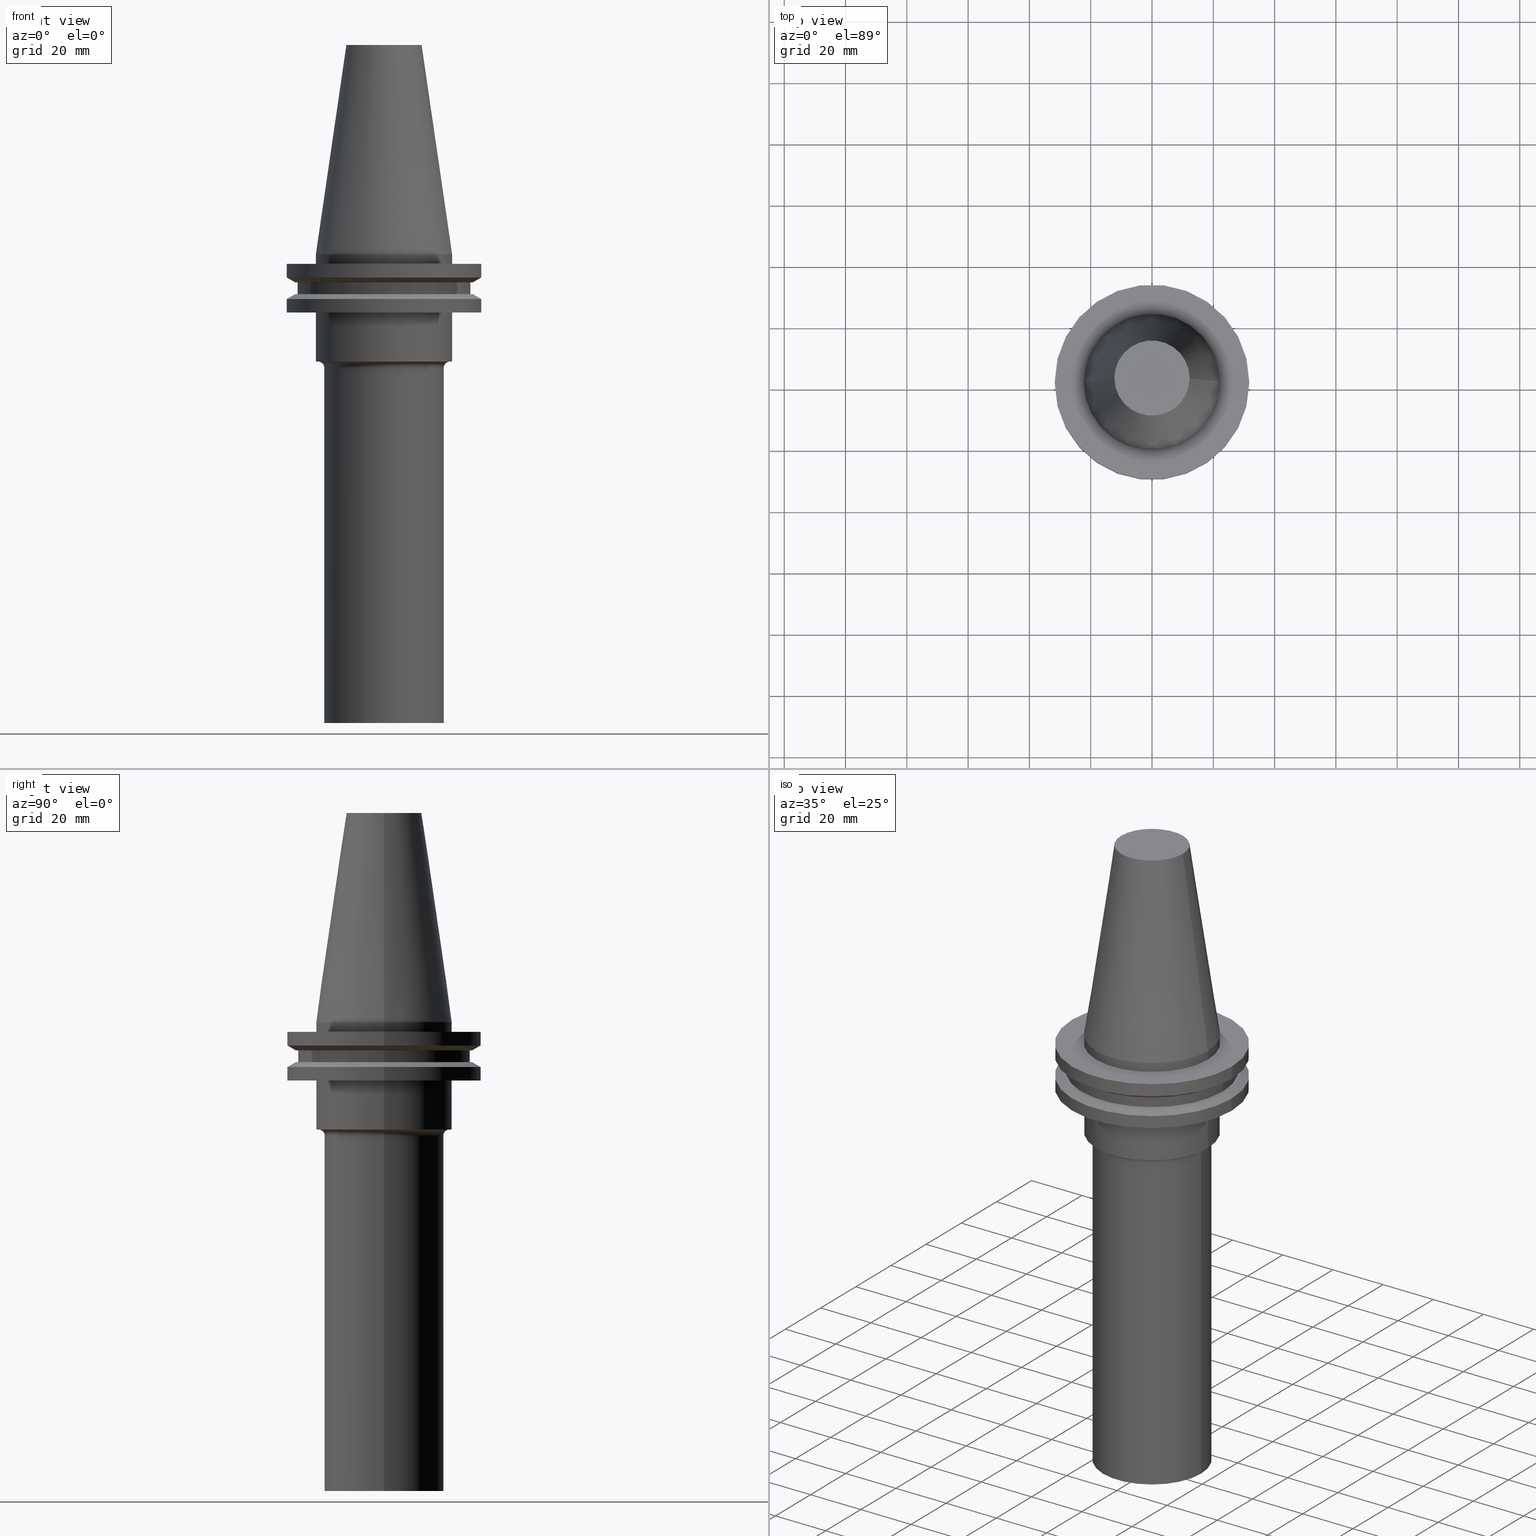
[diagram: canonical four-view strip — front | top / right | iso, engineering-drawing reading convention]
A machine part, canonical four-view strip (front | top / right | iso — engineering-drawing reading convention). The complete STEP part file that produces these views, byte-faithful:
ISO-10303-21;
HEADER;
FILE_DESCRIPTION (( 'STEP AP203' ),
    '1' );
FILE_NAME ('11_326_444.stp',
    '2022-03-07T22:04:25',
    ( '' ),
    ( '' ),
    'SwSTEP 2.0',
    'SolidWorks 2021',
    '' );
FILE_SCHEMA (( 'CONFIG_CONTROL_DESIGN' ));
ENDSEC;

DATA;
#1 = CARTESIAN_POINT ( 'NONE',  ( 0.000000000000000000, 0.000000000000000000, -9.204999999999991189 ) ) ;
#2 = AXIS2_PLACEMENT_3D ( 'NONE', #5, #486, #489 ) ;
#3 = VERTEX_POINT ( 'NONE', #62 ) ;
#4 = DIRECTION ( 'NONE',  ( -0.000000000000000000, -0.000000000000000000, 1.000000000000000000 ) ) ;
#5 = CARTESIAN_POINT ( 'NONE',  ( 0.000000000000000000, 0.000000000000000000, -9.205000000000005400 ) ) ;
#6 = DIRECTION ( 'NONE',  ( -0.000000000000000000, -0.000000000000000000, 1.000000000000000000 ) ) ;
#7 = AXIS2_PLACEMENT_3D ( 'NONE', #283, #220, #148 ) ;
#8 = PRODUCT_DEFINITION_FORMATION_WITH_SPECIFIED_SOURCE ( 'ANY', '', #328, .NOT_KNOWN. ) ;
#9 = DIRECTION ( 'NONE',  ( 0.000000000000000000, -0.000000000000000000, 1.000000000000000000 ) ) ;
#10 = DIRECTION ( 'NONE',  ( -0.000000000000000000, -0.000000000000000000, 1.000000000000000000 ) ) ;
#11 = ADVANCED_FACE ( 'NONE', ( #431 ), #749, .T. ) ;
#12 = CARTESIAN_POINT ( 'NONE',  ( 0.000000000000000000, 0.000000000000000000, -19.04999999999999716 ) ) ;
#13 = AXIS2_PLACEMENT_3D ( 'NONE', #179, #69, #134 ) ;
#14 = COORDINATED_UNIVERSAL_TIME_OFFSET ( 6, 0, .BEHIND. ) ;
#15 = CARTESIAN_POINT ( 'NONE',  ( 28.97919780457007732, 0.000000000000000000, -9.205000000000005400 ) ) ;
#16 = DIRECTION ( 'NONE',  ( -0.000000000000000000, -0.000000000000000000, 1.000000000000000000 ) ) ;
#17 = ORIENTED_EDGE ( 'NONE', *, *, #68, .T. ) ;
#18 = VERTEX_POINT ( 'NONE', #118 ) ;
#19 = LINE ( 'NONE', #609, #777 ) ;
#20 = ORIENTED_EDGE ( 'NONE', *, *, #393, .F. ) ;
#21 = ADVANCED_FACE ( 'NONE', ( #445 ), #665, .T. ) ;
#22 = APPLICATION_PROTOCOL_DEFINITION ( 'international standard', 'config_control_design', 1994, #559 ) ;
#23 = ORIENTED_EDGE ( 'NONE', *, *, #444, .F. ) ;
#24 = AXIS2_PLACEMENT_3D ( 'NONE', #737, #138, #605 ) ;
#25 = CARTESIAN_POINT ( 'NONE',  ( -31.75000000000000000, 3.888253587292846476E-15, -7.605276606597335842 ) ) ;
#26 = ORIENTED_EDGE ( 'NONE', *, *, #661, .F. ) ;
#27 = PERSON_AND_ORGANIZATION ( #374, #290 ) ;
#28 = ADVANCED_FACE ( 'NONE', ( #303, #548 ), #670, .F. ) ;
#29 = VECTOR ( 'NONE', #539, 1000.000000000000000 ) ;
#30 = EDGE_LOOP ( 'NONE', ( #658, #516, #562, #690 ) ) ;
#31 = LINE ( 'NONE', #334, #58 ) ;
#32 = CYLINDRICAL_SURFACE ( 'NONE', #666, 31.75000000000000000 ) ;
#33 = VERTEX_POINT ( 'NONE', #738 ) ;
#34 = DIRECTION ( 'NONE',  ( 1.000000000000000000, 0.000000000000000000, 0.000000000000000000 ) ) ;
#35 = ORIENTED_EDGE ( 'NONE', *, *, #308, .F. ) ;
#36 = CARTESIAN_POINT ( 'NONE',  ( 28.97919780457007732, 0.000000000000000000, -9.205000000000005400 ) ) ;
#37 = DIRECTION ( 'NONE',  ( 1.000000000000000000, 0.000000000000000000, 0.000000000000000000 ) ) ;
#38 = EDGE_LOOP ( 'NONE', ( #614, #628 ) ) ;
#39 = CARTESIAN_POINT ( 'NONE',  ( 0.000000000000000000, 0.000000000000000000, 0.000000000000000000 ) ) ;
#40 = CALENDAR_DATE ( 2022, 7, 3 ) ;
#41 = AXIS2_PLACEMENT_3D ( 'NONE', #154, #354, #47 ) ;
#42 = ORIENTED_EDGE ( 'NONE', *, *, #740, .T. ) ;
#43 = SECURITY_CLASSIFICATION ( '', '', #332 ) ;
#44 = CARTESIAN_POINT ( 'NONE',  ( 22.22500000000000142, 0.000000000000000000, -35.04999999999999716 ) ) ;
#45 = ORIENTED_EDGE ( 'NONE', *, *, #661, .T. ) ;
#46 = DIRECTION ( 'NONE',  ( 0.000000000000000000, -0.000000000000000000, 1.000000000000000000 ) ) ;
#47 = DIRECTION ( 'NONE',  ( -1.000000000000000000, 0.000000000000000000, 0.000000000000000000 ) ) ;
#48 = EDGE_LOOP ( 'NONE', ( #750, #103, #240, #532 ) ) ;
#49 = CARTESIAN_POINT ( 'NONE',  ( -28.97919780457008088, 0.000000000000000000, -13.05499999999999794 ) ) ;
#50 = EDGE_CURVE ( 'NONE', #144, #358, #612, .T. ) ;
#51 = CARTESIAN_POINT ( 'NONE',  ( 0.000000000000000000, 0.000000000000000000, 0.000000000000000000 ) ) ;
#52 = ORIENTED_EDGE ( 'NONE', *, *, #753, .F. ) ;
#53 = AXIS2_PLACEMENT_3D ( 'NONE', #680, #291, #129 ) ;
#54 = DIRECTION ( 'NONE',  ( 1.000000000000000000, 0.000000000000000000, 0.000000000000000000 ) ) ;
#55 = ORIENTED_EDGE ( 'NONE', *, *, #379, .F. ) ;
#56 = FACE_OUTER_BOUND ( 'NONE', #523, .T. ) ;
#57 = ADVANCED_FACE ( 'NONE', ( #248 ), #304, .F. ) ;
#58 = VECTOR ( 'NONE', #267, 1000.000000000000000 ) ;
#59 = EDGE_CURVE ( 'NONE', #576, #534, #530, .T. ) ;
#60 = AXIS2_PLACEMENT_3D ( 'NONE', #124, #370, #181 ) ;
#61 = DIRECTION ( 'NONE',  ( 1.000000000000000000, 0.000000000000000000, 0.000000000000000000 ) ) ;
#62 = CARTESIAN_POINT ( 'NONE',  ( -19.50000000000000000, 2.388061258337338939E-15, -153.0000000000000000 ) ) ;
#63 = CIRCLE ( 'NONE', #93, 22.22500000000000142 ) ;
#64 = EDGE_CURVE ( 'NONE', #89, #333, #604, .T. ) ;
#65 = DIRECTION ( 'NONE',  ( 1.000000000000000000, 0.000000000000000000, 0.000000000000000000 ) ) ;
#66 = DIRECTION ( 'NONE',  ( -0.000000000000000000, -0.000000000000000000, 1.000000000000000000 ) ) ;
#67 = CARTESIAN_POINT ( 'NONE',  ( 0.000000000000000000, 0.000000000000000000, -35.04999999999999716 ) ) ;
#68 = EDGE_CURVE ( 'NONE', #449, #144, #250, .T. ) ;
#69 = DIRECTION ( 'NONE',  ( -0.000000000000000000, -0.000000000000000000, 1.000000000000000000 ) ) ;
#70 = FACE_OUTER_BOUND ( 'NONE', #771, .T. ) ;
#71 = CIRCLE ( 'NONE', #433, 22.22500000000000142 ) ;
#72 = PERSON_AND_ORGANIZATION ( #374, #290 ) ;
#73 = EDGE_CURVE ( 'NONE', #764, #349, #736, .T. ) ;
#74 = DIRECTION ( 'NONE',  ( 1.000000000000000000, 0.000000000000000000, 0.000000000000000000 ) ) ;
#75 = PLANE ( 'NONE',  #687 ) ;
#76 = ADVANCED_FACE ( 'NONE', ( #126 ), #372, .T. ) ;
#77 = ORIENTED_EDGE ( 'NONE', *, *, #501, .F. ) ;
#78 = CARTESIAN_POINT ( 'NONE',  ( -22.22500000000000142, 2.721777511104992849E-15, -35.04999999999999716 ) ) ;
#79 = ADVANCED_FACE ( 'NONE', ( #376 ), #608, .T. ) ;
#80 = ORIENTED_EDGE ( 'NONE', *, *, #116, .T. ) ;
#81 = DIRECTION ( 'NONE',  ( 1.000000000000000000, 0.000000000000000000, 0.000000000000000000 ) ) ;
#82 = ORIENTED_EDGE ( 'NONE', *, *, #379, .T. ) ;
#83 = DIRECTION ( 'NONE',  ( 1.000000000000000000, 0.000000000000000000, 0.000000000000000000 ) ) ;
#84 = ORIENTED_EDGE ( 'NONE', *, *, #50, .T. ) ;
#85 =( GEOMETRIC_REPRESENTATION_CONTEXT ( 3 ) GLOBAL_UNCERTAINTY_ASSIGNED_CONTEXT ( ( #633 ) ) GLOBAL_UNIT_ASSIGNED_CONTEXT ( ( #632, #206, #756 ) ) REPRESENTATION_CONTEXT ( 'NONE', 'WORKASPACE' ) );
#86 = PERSON_AND_ORGANIZATION_ROLE ( 'design_supplier' ) ;
#87 = AXIS2_PLACEMENT_3D ( 'NONE', #217, #754, #464 ) ;
#88 = APPROVAL ( #448, 'UNSPECIFIED' ) ;
#89 = VERTEX_POINT ( 'NONE', #442 ) ;
#90 = CARTESIAN_POINT ( 'NONE',  ( 0.000000000000000000, 12.27178102086201150, 68.25000000000000000 ) ) ;
#91 = DIRECTION ( 'NONE',  ( -0.000000000000000000, -0.000000000000000000, 1.000000000000000000 ) ) ;
#92 = ORIENTED_EDGE ( 'NONE', *, *, #73, .F. ) ;
#93 = AXIS2_PLACEMENT_3D ( 'NONE', #113, #419, #230 ) ;
#94 = VERTEX_POINT ( 'NONE', #681 ) ;
#95 = DIRECTION ( 'NONE',  ( 1.000000000000000000, 0.000000000000000000, 0.000000000000000000 ) ) ;
#96 = CLOSED_SHELL ( 'NONE', ( #57, #601, #369, #509, #200, #483, #587, #76, #266, #467, #180, #150, #286, #497, #645, #481, #476, #324, #21, #652, #11, #232, #28, #79, #297, #718, #728 ) ) ;
#97 = CARTESIAN_POINT ( 'NONE',  ( 0.000000000000000000, 0.000000000000000000, -13.05499999999999794 ) ) ;
#98 = EDGE_LOOP ( 'NONE', ( #471, #701 ) ) ;
#99 = LINE ( 'NONE', #705, #535 ) ;
#100 = EDGE_LOOP ( 'NONE', ( #699, #278 ) ) ;
#101 = SHAPE_DEFINITION_REPRESENTATION ( #558, #696 ) ;
#102 = CIRCLE ( 'NONE', #132, 22.22500000000000142 ) ;
#103 = ORIENTED_EDGE ( 'NONE', *, *, #753, .T. ) ;
#104 = DIRECTION ( 'NONE',  ( 1.000000000000000000, 0.000000000000000000, 0.000000000000000000 ) ) ;
#105 = EDGE_LOOP ( 'NONE', ( #82, #141, #455, #712 ) ) ;
#106 = APPLICATION_CONTEXT ( 'configuration controlled 3d designs of mechanical parts and assemblies' ) ;
#107 = CARTESIAN_POINT ( 'NONE',  ( -22.22500000000000142, 0.000000000000000000, 0.000000000000000000 ) ) ;
#108 = ORIENTED_EDGE ( 'NONE', *, *, #170, .T. ) ;
#109 = AXIS2_PLACEMENT_3D ( 'NONE', #726, #434, #196 ) ;
#110 = EDGE_CURVE ( 'NONE', #510, #678, #31, .T. ) ;
#111 = CARTESIAN_POINT ( 'NONE',  ( -22.22500000000000142, 0.000000000000000000, 0.000000000000000000 ) ) ;
#112 = ORIENTED_EDGE ( 'NONE', *, *, #73, .T. ) ;
#113 = CARTESIAN_POINT ( 'NONE',  ( 0.000000000000000000, 0.000000000000000000, -35.04999999999999716 ) ) ;
#114 = EDGE_CURVE ( 'NONE', #394, #358, #264, .T. ) ;
#115 = CIRCLE ( 'NONE', #711, 21.50000000000000000 ) ;
#116 = EDGE_CURVE ( 'NONE', #519, #137, #205, .T. ) ;
#117 = CARTESIAN_POINT ( 'NONE',  ( 0.000000000000000000, 0.000000000000000000, -19.04999999999999716 ) ) ;
#118 = CARTESIAN_POINT ( 'NONE',  ( 21.50000000000000000, 0.000000000000000000, -35.04999999999999716 ) ) ;
#119 = EDGE_CURVE ( 'NONE', #461, #764, #775, .T. ) ;
#120 = DIRECTION ( 'NONE',  ( 1.000000000000000000, 0.000000000000000000, 0.000000000000000000 ) ) ;
#121 = DIRECTION ( 'NONE',  ( 0.8660254037844389297, 0.000000000000000000, 0.4999999999999995004 ) ) ;
#122 = DIRECTION ( 'NONE',  ( -0.000000000000000000, -0.000000000000000000, 1.000000000000000000 ) ) ;
#123 = AXIS2_PLACEMENT_3D ( 'NONE', #537, #356, #773 ) ;
#124 = CARTESIAN_POINT ( 'NONE',  ( 0.000000000000000000, 31.74999999999999289, -19.04999999999999716 ) ) ;
#125 = DIRECTION ( 'NONE',  ( 1.224646799147353207E-16, 1.000000000000000000, 0.000000000000000000 ) ) ;
#126 = FACE_OUTER_BOUND ( 'NONE', #513, .T. ) ;
#127 = CARTESIAN_POINT ( 'NONE',  ( -28.17999999999999972, 3.451054679997241634E-15, -13.05499999999999794 ) ) ;
#128 = EDGE_CURVE ( 'NONE', #171, #94, #540, .T. ) ;
#129 = DIRECTION ( 'NONE',  ( 1.000000000000000000, 0.000000000000000000, 0.000000000000000000 ) ) ;
#130 = ORIENTED_EDGE ( 'NONE', *, *, #331, .F. ) ;
#131 = FACE_BOUND ( 'NONE', #215, .T. ) ;
#132 = AXIS2_PLACEMENT_3D ( 'NONE', #488, #769, #301 ) ;
#133 = AXIS2_PLACEMENT_3D ( 'NONE', #688, #309, #373 ) ;
#134 = DIRECTION ( 'NONE',  ( 1.000000000000000000, 0.000000000000000000, 0.000000000000000000 ) ) ;
#135 = DIRECTION ( 'NONE',  ( 1.000000000000000000, 0.000000000000000000, 0.000000000000000000 ) ) ;
#136 = PERSON_AND_ORGANIZATION ( #374, #290 ) ;
#137 = VERTEX_POINT ( 'NONE', #341 ) ;
#138 = DIRECTION ( 'NONE',  ( -0.000000000000000000, -0.000000000000000000, 1.000000000000000000 ) ) ;
#139 = ORIENTED_EDGE ( 'NONE', *, *, #163, .F. ) ;
#140 = PERSON_AND_ORGANIZATION_ROLE ( 'creator' ) ;
#141 = ORIENTED_EDGE ( 'NONE', *, *, #536, .T. ) ;
#142 = CARTESIAN_POINT ( 'NONE',  ( 0.000000000000000000, 0.000000000000000000, -7.605276606597335842 ) ) ;
#143 = FACE_OUTER_BOUND ( 'NONE', #747, .T. ) ;
#144 = VERTEX_POINT ( 'NONE', #36 ) ;
#145 = DIRECTION ( 'NONE',  ( 1.000000000000000000, 0.000000000000000000, 0.000000000000000000 ) ) ;
#146 = ORIENTED_EDGE ( 'NONE', *, *, #423, .F. ) ;
#147 = DIRECTION ( 'NONE',  ( 1.000000000000000000, 0.000000000000000000, 0.000000000000000000 ) ) ;
#148 = DIRECTION ( 'NONE',  ( 1.000000000000000000, 0.000000000000000000, 0.000000000000000000 ) ) ;
#149 = VERTEX_POINT ( 'NONE', #635 ) ;
#150 = ADVANCED_FACE ( 'NONE', ( #626 ), #574, .F. ) ;
#151 = VECTOR ( 'NONE', #289, 1000.000000000000000 ) ;
#152 = ORIENTED_EDGE ( 'NONE', *, *, #359, .F. ) ;
#153 = CARTESIAN_POINT ( 'NONE',  ( 0.000000000000000000, 0.000000000000000000, 68.25000000000000000 ) ) ;
#154 = CARTESIAN_POINT ( 'NONE',  ( 0.000000000000000000, 0.000000000000000000, 0.000000000000000000 ) ) ;
#155 = EDGE_LOOP ( 'NONE', ( #625, #503, #528, #146 ) ) ;
#156 = DIRECTION ( 'NONE',  ( 1.000000000000000000, 0.000000000000000000, 0.000000000000000000 ) ) ;
#157 = EDGE_CURVE ( 'NONE', #3, #33, #463, .T. ) ;
#158 = ORIENTED_EDGE ( 'NONE', *, *, #385, .F. ) ;
#159 = CARTESIAN_POINT ( 'NONE',  ( 31.74999999999999289, 0.000000000000000000, -19.04999999999999716 ) ) ;
#160 = ORIENTED_EDGE ( 'NONE', *, *, #119, .T. ) ;
#161 = CARTESIAN_POINT ( 'NONE',  ( -19.50000000000000000, 2.388061258337338939E-15, 0.000000000000000000 ) ) ;
#162 = TOROIDAL_SURFACE ( 'NONE', #776, 21.50000000000000000, 2.000000000000003553 ) ;
#163 = EDGE_CURVE ( 'NONE', #418, #714, #472, .T. ) ;
#164 = CARTESIAN_POINT ( 'NONE',  ( 19.50000000000000000, 0.000000000000000000, -37.04999999999999716 ) ) ;
#165 = CIRCLE ( 'NONE', #568, 12.27178102086201150 ) ;
#166 = ORIENTED_EDGE ( 'NONE', *, *, #110, .F. ) ;
#167 = AXIS2_PLACEMENT_3D ( 'NONE', #682, #253, #313 ) ;
#168 = CONICAL_SURFACE ( 'NONE', #734, 28.97919780457007732, 1.047197551196598297 ) ;
#169 = CYLINDRICAL_SURFACE ( 'NONE', #381, 19.50000000000000000 ) ;
#170 = EDGE_CURVE ( 'NONE', #526, #519, #344, .T. ) ;
#171 = VERTEX_POINT ( 'NONE', #49 ) ;
#172 = CC_DESIGN_PERSON_AND_ORGANIZATION_ASSIGNMENT ( #395, #86, ( #8 ) ) ;
#173 = APPROVAL_ROLE ( '' ) ;
#174 = VECTOR ( 'NONE', #585, 1000.000000000000000 ) ;
#175 = AXIS2_PLACEMENT_3D ( 'NONE', #491, #9, #61 ) ;
#176 = CC_DESIGN_APPROVAL ( #88, ( #8 ) ) ;
#177 = DIRECTION ( 'NONE',  ( 1.000000000000000000, 0.000000000000000000, 0.000000000000000000 ) ) ;
#178 = CARTESIAN_POINT ( 'NONE',  ( -28.17999999999999972, 3.451054679997241634E-15, 68.25000000000000000 ) ) ;
#179 = CARTESIAN_POINT ( 'NONE',  ( 0.000000000000000000, 0.000000000000000000, -9.205000000000005400 ) ) ;
#180 = ADVANCED_FACE ( 'NONE', ( #56 ), #654, .T. ) ;
#181 = DIRECTION ( 'NONE',  ( 1.000000000000000000, 0.000000000000000000, 0.000000000000000000 ) ) ;
#182 = ORIENTED_EDGE ( 'NONE', *, *, #393, .T. ) ;
#183 = CARTESIAN_POINT ( 'NONE',  ( 0.000000000000000000, 0.000000000000000000, -19.04999999999999716 ) ) ;
#184 = AXIS2_PLACEMENT_3D ( 'NONE', #12, #392, #135 ) ;
#185 = AXIS2_PLACEMENT_3D ( 'NONE', #721, #236, #366 ) ;
#186 = DIRECTION ( 'NONE',  ( 1.000000000000000000, 0.000000000000000000, 0.000000000000000000 ) ) ;
#187 = CARTESIAN_POINT ( 'NONE',  ( 0.000000000000000000, 0.000000000000000000, -3.174999999999997158 ) ) ;
#188 = DIRECTION ( 'NONE',  ( 1.000000000000000000, 0.000000000000000000, 0.000000000000000000 ) ) ;
#189 = EDGE_CURVE ( 'NONE', #33, #577, #361, .T. ) ;
#190 = AXIS2_PLACEMENT_3D ( 'NONE', #39, #274, #525 ) ;
#191 = APPROVAL ( #209, 'UNSPECIFIED' ) ;
#192 = DIRECTION ( 'NONE',  ( 0.8660254037844387076, 1.060575238724906915E-16, -0.4999999999999998890 ) ) ;
#193 = DIRECTION ( 'NONE',  ( 1.000000000000000000, 0.000000000000000000, 0.000000000000000000 ) ) ;
#194 = DIRECTION ( 'NONE',  ( 0.000000000000000000, 0.000000000000000000, -1.000000000000000000 ) ) ;
#195 = APPROVAL_ROLE ( '' ) ;
#196 = DIRECTION ( 'NONE',  ( -1.000000000000000000, 0.000000000000000000, -0.000000000000000000 ) ) ;
#197 = CARTESIAN_POINT ( 'NONE',  ( 31.75000000000000000, 0.000000000000000000, -7.605276606597335842 ) ) ;
#198 = CIRCLE ( 'NONE', #347, 31.75000000000000000 ) ;
#199 = APPROVAL_ROLE ( '' ) ;
#200 = ADVANCED_FACE ( 'NONE', ( #768 ), #168, .T. ) ;
#201 = AXIS2_PLACEMENT_3D ( 'NONE', #473, #643, #691 ) ;
#202 = EDGE_LOOP ( 'NONE', ( #704, #212, #281, #166 ) ) ;
#203 = CARTESIAN_POINT ( 'NONE',  ( 22.22500000000000142, 2.721777511104992849E-15, 0.000000000000000000 ) ) ;
#204 = ORIENTED_EDGE ( 'NONE', *, *, #615, .F. ) ;
#205 = CIRCLE ( 'NONE', #371, 31.75000000000000000 ) ;
#206 =( NAMED_UNIT ( * ) PLANE_ANGLE_UNIT ( ) SI_UNIT ( $, .RADIAN. ) );
#207 = DIRECTION ( 'NONE',  ( 1.000000000000000000, 0.000000000000000000, 0.000000000000000000 ) ) ;
#208 = ORIENTED_EDGE ( 'NONE', *, *, #296, .F. ) ;
#209 = APPROVAL_STATUS ( 'not_yet_approved' ) ;
#210 = DIRECTION ( 'NONE',  ( -0.000000000000000000, -0.000000000000000000, 1.000000000000000000 ) ) ;
#211 = CARTESIAN_POINT ( 'NONE',  ( 0.000000000000000000, 0.000000000000000000, 68.25000000000000000 ) ) ;
#212 = ORIENTED_EDGE ( 'NONE', *, *, #163, .T. ) ;
#213 = CONICAL_SURFACE ( 'NONE', #87, 31.75000000000000000, 1.047197551196597853 ) ;
#214 = CALENDAR_DATE ( 2022, 7, 3 ) ;
#215 = EDGE_LOOP ( 'NONE', ( #389, #23 ) ) ;
#216 = CARTESIAN_POINT ( 'NONE',  ( 0.000000000000000000, 0.000000000000000000, -14.65472339340266572 ) ) ;
#217 = CARTESIAN_POINT ( 'NONE',  ( 0.000000000000000000, 0.000000000000000000, -14.65472339340266572 ) ) ;
#218 = ORIENTED_EDGE ( 'NONE', *, *, #59, .T. ) ;
#219 = ORIENTED_EDGE ( 'NONE', *, *, #224, .F. ) ;
#220 = DIRECTION ( 'NONE',  ( -0.000000000000000000, -0.000000000000000000, 1.000000000000000000 ) ) ;
#221 = ORIENTED_EDGE ( 'NONE', *, *, #595, .F. ) ;
#222 = CARTESIAN_POINT ( 'NONE',  ( -22.22500000000000142, 2.721777511104992849E-15, -3.174999999999997158 ) ) ;
#223 = ORIENTED_EDGE ( 'NONE', *, *, #114, .T. ) ;
#224 = EDGE_CURVE ( 'NONE', #418, #510, #63, .T. ) ;
#225 = AXIS2_PLACEMENT_3D ( 'NONE', #211, #415, #272 ) ;
#226 = LINE ( 'NONE', #111, #543 ) ;
#227 = ORIENTED_EDGE ( 'NONE', *, *, #170, .F. ) ;
#228 = CIRCLE ( 'NONE', #201, 28.17999999999999972 ) ;
#229 = AXIS2_PLACEMENT_3D ( 'NONE', #724, #686, #439 ) ;
#230 = DIRECTION ( 'NONE',  ( 1.000000000000000000, 0.000000000000000000, 0.000000000000000000 ) ) ;
#231 = CC_DESIGN_PERSON_AND_ORGANIZATION_ASSIGNMENT ( #265, #515, ( #43 ) ) ;
#232 = ADVANCED_FACE ( 'NONE', ( #295 ), #656, .T. ) ;
#233 = VECTOR ( 'NONE', #694, 1000.000000000000000 ) ;
#234 = AXIS2_PLACEMENT_3D ( 'NONE', #673, #46, #282 ) ;
#235 = CARTESIAN_POINT ( 'NONE',  ( -31.75000000000000000, 0.000000000000000000, -14.65472339340266572 ) ) ;
#236 = DIRECTION ( 'NONE',  ( -0.000000000000000000, -0.000000000000000000, 1.000000000000000000 ) ) ;
#237 = ORIENTED_EDGE ( 'NONE', *, *, #364, .T. ) ;
#238 = ORIENTED_EDGE ( 'NONE', *, *, #423, .T. ) ;
#239 = FACE_OUTER_BOUND ( 'NONE', #640, .T. ) ;
#240 = ORIENTED_EDGE ( 'NONE', *, *, #322, .T. ) ;
#241 = LINE ( 'NONE', #235, #551 ) ;
#242 = EDGE_CURVE ( 'NONE', #149, #33, #479, .T. ) ;
#243 = CARTESIAN_POINT ( 'NONE',  ( 0.000000000000000000, 0.000000000000000000, 68.25000000000000000 ) ) ;
#244 = LINE ( 'NONE', #744, #293 ) ;
#245 = CC_DESIGN_APPROVAL ( #387, ( #43 ) ) ;
#246 = DIRECTION ( 'NONE',  ( -0.000000000000000000, -0.000000000000000000, 1.000000000000000000 ) ) ;
#247 = DIRECTION ( 'NONE',  ( -1.000000000000000000, 1.224646799147355179E-16, 0.000000000000000000 ) ) ;
#248 = FACE_OUTER_BOUND ( 'NONE', #155, .T. ) ;
#249 = CARTESIAN_POINT ( 'NONE',  ( 0.000000000000000000, 0.000000000000000000, -19.04999999999999716 ) ) ;
#250 = CIRCLE ( 'NONE', #13, 28.97919780457007732 ) ;
#251 = DIRECTION ( 'NONE',  ( -0.000000000000000000, -0.000000000000000000, 1.000000000000000000 ) ) ;
#252 = DIRECTION ( 'NONE',  ( -0.000000000000000000, -0.000000000000000000, 1.000000000000000000 ) ) ;
#253 = DIRECTION ( 'NONE',  ( -0.000000000000000000, -0.000000000000000000, 1.000000000000000000 ) ) ;
#254 = DIRECTION ( 'NONE',  ( -0.000000000000000000, -0.000000000000000000, 1.000000000000000000 ) ) ;
#255 = EDGE_LOOP ( 'NONE', ( #621, #644 ) ) ;
#256 = DIRECTION ( 'NONE',  ( 0.000000000000000000, 0.000000000000000000, -1.000000000000000000 ) ) ;
#257 = ORIENTED_EDGE ( 'NONE', *, *, #64, .T. ) ;
#258 = AXIS2_PLACEMENT_3D ( 'NONE', #259, #555, #81 ) ;
#259 = CARTESIAN_POINT ( 'NONE',  ( 0.000000000000000000, 0.000000000000000000, -153.0000000000000000 ) ) ;
#260 = AXIS2_PLACEMENT_3D ( 'NONE', #620, #377, #733 ) ;
#261 = ORIENTED_EDGE ( 'NONE', *, *, #746, .T. ) ;
#262 = CARTESIAN_POINT ( 'NONE',  ( -31.74999999999999289, 3.888253587292845687E-15, -19.04999999999999716 ) ) ;
#263 = ORIENTED_EDGE ( 'NONE', *, *, #242, .F. ) ;
#264 = CIRCLE ( 'NONE', #302, 31.75000000000000000 ) ;
#265 = PERSON_AND_ORGANIZATION ( #374, #290 ) ;
#266 = ADVANCED_FACE ( 'NONE', ( #306 ), #664, .T. ) ;
#267 = DIRECTION ( 'NONE',  ( -0.000000000000000000, -0.000000000000000000, 1.000000000000000000 ) ) ;
#268 = FACE_OUTER_BOUND ( 'NONE', #421, .T. ) ;
#269 = ORIENTED_EDGE ( 'NONE', *, *, #271, .T. ) ;
#270 = DIRECTION ( 'NONE',  ( 1.000000000000000000, 0.000000000000000000, 0.000000000000000000 ) ) ;
#271 = EDGE_CURVE ( 'NONE', #577, #33, #772, .T. ) ;
#272 = DIRECTION ( 'NONE',  ( 1.000000000000000000, 0.000000000000000000, 0.000000000000000000 ) ) ;
#273 = ORIENTED_EDGE ( 'NONE', *, *, #363, .F. ) ;
#274 = DIRECTION ( 'NONE',  ( 0.000000000000000000, 0.000000000000000000, -1.000000000000000000 ) ) ;
#275 = AXIS2_PLACEMENT_3D ( 'NONE', #713, #375, #120 ) ;
#276 = DATE_AND_TIME ( #659, #314 ) ;
#277 = CC_DESIGN_APPROVAL ( #191, ( #676 ) ) ;
#278 = ORIENTED_EDGE ( 'NONE', *, *, #672, .T. ) ;
#279 = AXIS2_PLACEMENT_3D ( 'NONE', #671, #66, #446 ) ;
#280 = DIRECTION ( 'NONE',  ( -0.000000000000000000, -0.000000000000000000, 1.000000000000000000 ) ) ;
#281 = ORIENTED_EDGE ( 'NONE', *, *, #746, .F. ) ;
#282 = DIRECTION ( 'NONE',  ( 1.000000000000000000, 0.000000000000000000, 0.000000000000000000 ) ) ;
#283 = CARTESIAN_POINT ( 'NONE',  ( 0.000000000000000000, 0.000000000000000000, 68.25000000000000000 ) ) ;
#284 = EDGE_LOOP ( 'NONE', ( #273, #583 ) ) ;
#285 = DIRECTION ( 'NONE',  ( -0.000000000000000000, -0.000000000000000000, 1.000000000000000000 ) ) ;
#286 = ADVANCED_FACE ( 'NONE', ( #426, #596 ), #600, .F. ) ;
#287 = FACE_OUTER_BOUND ( 'NONE', #30, .T. ) ;
#288 = ORIENTED_EDGE ( 'NONE', *, *, #662, .T. ) ;
#289 = DIRECTION ( 'NONE',  ( -0.000000000000000000, -0.000000000000000000, 1.000000000000000000 ) ) ;
#290 = ORGANIZATION ( 'UNSPECIFIED', 'UNSPECIFIED', '' ) ;
#291 = DIRECTION ( 'NONE',  ( -0.000000000000000000, -0.000000000000000000, 1.000000000000000000 ) ) ;
#292 = ORIENTED_EDGE ( 'NONE', *, *, #595, .T. ) ;
#293 = VECTOR ( 'NONE', #122, 1000.000000000000000 ) ;
#294 = AXIS2_PLACEMENT_3D ( 'NONE', #243, #492, #386 ) ;
#295 = FACE_OUTER_BOUND ( 'NONE', #412, .T. ) ;
#296 = EDGE_CURVE ( 'NONE', #579, #638, #228, .T. ) ;
#297 = ADVANCED_FACE ( 'NONE', ( #505 ), #382, .F. ) ;
#298 = AXIS2_PLACEMENT_3D ( 'NONE', #117, #254, #145 ) ;
#299 = DIRECTION ( 'NONE',  ( 1.000000000000000000, 0.000000000000000000, 0.000000000000000000 ) ) ;
#300 = CIRCLE ( 'NONE', #581, 21.50000000000000000 ) ;
#301 = DIRECTION ( 'NONE',  ( 1.000000000000000000, 0.000000000000000000, 0.000000000000000000 ) ) ;
#302 = AXIS2_PLACEMENT_3D ( 'NONE', #142, #459, #517 ) ;
#303 = FACE_BOUND ( 'NONE', #284, .T. ) ;
#304 = TOROIDAL_SURFACE ( 'NONE', #428, 21.50000000000000000, 2.000000000000003553 ) ;
#305 = CARTESIAN_POINT ( 'NONE',  ( 31.75000000000000000, 3.888253587292846476E-15, -14.65472339340266572 ) ) ;
#306 = FACE_OUTER_BOUND ( 'NONE', #202, .T. ) ;
#307 = DIRECTION ( 'NONE',  ( 0.1443082272672999711, 1.767266086135276757E-17, -0.9895327864921755756 ) ) ;
#308 = EDGE_CURVE ( 'NONE', #576, #572, #435, .T. ) ;
#309 = DIRECTION ( 'NONE',  ( -0.000000000000000000, -0.000000000000000000, 1.000000000000000000 ) ) ;
#310 = CARTESIAN_POINT ( 'NONE',  ( -22.22500000000000142, 2.721777511104992849E-15, -19.04999999999999716 ) ) ;
#311 = CARTESIAN_POINT ( 'NONE',  ( 22.22500000000000142, 2.721777511104992849E-15, 0.000000000000000000 ) ) ;
#312 = AXIS2_PLACEMENT_3D ( 'NONE', #67, #4, #723 ) ;
#313 = DIRECTION ( 'NONE',  ( 1.000000000000000000, 0.000000000000000000, 0.000000000000000000 ) ) ;
#314 = LOCAL_TIME ( 16, 4, 25.00000000000000000, #592 ) ;
#315 = AXIS2_PLACEMENT_3D ( 'NONE', #249, #549, #493 ) ;
#316 = COORDINATED_UNIVERSAL_TIME_OFFSET ( 6, 0, .BEHIND. ) ;
#317 = DIRECTION ( 'NONE',  ( -0.000000000000000000, -0.000000000000000000, 1.000000000000000000 ) ) ;
#318 = CARTESIAN_POINT ( 'NONE',  ( -22.22500000000000142, 2.721777511104992849E-15, 68.25000000000000000 ) ) ;
#319 = MECHANICAL_CONTEXT ( 'NONE', #559, 'mechanical' ) ;
#320 = DIRECTION ( 'NONE',  ( 1.000000000000000000, 0.000000000000000000, 0.000000000000000000 ) ) ;
#321 = LINE ( 'NONE', #527, #174 ) ;
#322 = EDGE_CURVE ( 'NONE', #556, #577, #244, .T. ) ;
#323 = ORIENTED_EDGE ( 'NONE', *, *, #490, .T. ) ;
#324 = ADVANCED_FACE ( 'NONE', ( #131, #613 ), #75, .F. ) ;
#325 = PERSON_AND_ORGANIZATION ( #374, #290 ) ;
#326 = ORIENTED_EDGE ( 'NONE', *, *, #631, .T. ) ;
#327 = DIRECTION ( 'NONE',  ( -0.000000000000000000, -0.000000000000000000, 1.000000000000000000 ) ) ;
#328 = PRODUCT ( '11_326_444', '11_326_444', '', ( #319 ) ) ;
#329 = VERTEX_POINT ( 'NONE', #262 ) ;
#330 = CIRCLE ( 'NONE', #741, 31.75000000000000000 ) ;
#331 = EDGE_CURVE ( 'NONE', #94, #171, #743, .T. ) ;
#332 = SECURITY_CLASSIFICATION_LEVEL ( 'unclassified' ) ;
#333 = VERTEX_POINT ( 'NONE', #127 ) ;
#334 = CARTESIAN_POINT ( 'NONE',  ( 22.22500000000000142, 0.000000000000000000, 68.25000000000000000 ) ) ;
#335 = DIRECTION ( 'NONE',  ( -0.000000000000000000, -0.000000000000000000, 1.000000000000000000 ) ) ;
#336 = ORIENTED_EDGE ( 'NONE', *, *, #352, .F. ) ;
#337 = VECTOR ( 'NONE', #413, 1000.000000000000000 ) ;
#338 = EDGE_CURVE ( 'NONE', #556, #3, #404, .T. ) ;
#339 = DESIGN_CONTEXT ( 'detailed design', #106, 'design' ) ;
#340 = VERTEX_POINT ( 'NONE', #561 ) ;
#341 = CARTESIAN_POINT ( 'NONE',  ( -31.75000000000000000, 3.888253587292846476E-15, -14.65472339340266572 ) ) ;
#342 = DIRECTION ( 'NONE',  ( -0.000000000000000000, -0.000000000000000000, 1.000000000000000000 ) ) ;
#343 = ORIENTED_EDGE ( 'NONE', *, *, #536, .F. ) ;
#344 = LINE ( 'NONE', #716, #29 ) ;
#345 = DIRECTION ( 'NONE',  ( -0.8660254037844389297, 1.060575238724907285E-16, 0.4999999999999995004 ) ) ;
#346 = ORIENTED_EDGE ( 'NONE', *, *, #308, .T. ) ;
#347 = AXIS2_PLACEMENT_3D ( 'NONE', #441, #429, #485 ) ;
#348 = APPROVAL_PERSON_ORGANIZATION ( #27, #88, #195 ) ;
#349 = VERTEX_POINT ( 'NONE', #203 ) ;
#350 = CIRCLE ( 'NONE', #279, 31.75000000000000000 ) ;
#351 = LINE ( 'NONE', #470, #233 ) ;
#352 = EDGE_CURVE ( 'NONE', #89, #638, #19, .T. ) ;
#353 = ORIENTED_EDGE ( 'NONE', *, *, #501, .T. ) ;
#354 = DIRECTION ( 'NONE',  ( 0.000000000000000000, 0.000000000000000000, -1.000000000000000000 ) ) ;
#355 = ORIENTED_EDGE ( 'NONE', *, *, #702, .T. ) ;
#356 = DIRECTION ( 'NONE',  ( -0.000000000000000000, -0.000000000000000000, 1.000000000000000000 ) ) ;
#357 = DIRECTION ( 'NONE',  ( -0.1443082272672999711, 0.000000000000000000, -0.9895327864921755756 ) ) ;
#358 = VERTEX_POINT ( 'NONE', #197 ) ;
#359 = EDGE_CURVE ( 'NONE', #18, #149, #300, .T. ) ;
#360 = CIRCLE ( 'NONE', #590, 28.17999999999999972 ) ;
#361 = CIRCLE ( 'NONE', #594, 19.50000000000000000 ) ;
#362 = AXIS2_PLACEMENT_3D ( 'NONE', #368, #498, #74 ) ;
#363 = EDGE_CURVE ( 'NONE', #534, #576, #669, .T. ) ;
#364 = EDGE_CURVE ( 'NONE', #714, #678, #447, .T. ) ;
#365 = PLANE ( 'NONE',  #60 ) ;
#366 = DIRECTION ( 'NONE',  ( 1.000000000000000000, 0.000000000000000000, 0.000000000000000000 ) ) ;
#367 = CIRCLE ( 'NONE', #611, 31.75000000000000000 ) ;
#368 = CARTESIAN_POINT ( 'NONE',  ( 0.000000000000000000, 0.000000000000000000, 68.25000000000000000 ) ) ;
#369 = ADVANCED_FACE ( 'NONE', ( #70 ), #739, .T. ) ;
#370 = DIRECTION ( 'NONE',  ( 0.000000000000000000, -0.000000000000000000, 1.000000000000000000 ) ) ;
#371 = AXIS2_PLACEMENT_3D ( 'NONE', #216, #752, #95 ) ;
#372 = CYLINDRICAL_SURFACE ( 'NONE', #294, 31.75000000000000000 ) ;
#373 = DIRECTION ( 'NONE',  ( 1.000000000000000000, 0.000000000000000000, 0.000000000000000000 ) ) ;
#374 = PERSON ( 'UNSPECIFIED', 'UNSPECIFIED', 'UNSPECIFIED', ('UNSPECIFIED'), ('UNSPECIFIED'), ('UNSPECIFIED') ) ;
#375 = DIRECTION ( 'NONE',  ( -0.000000000000000000, -0.000000000000000000, 1.000000000000000000 ) ) ;
#376 = FACE_OUTER_BOUND ( 'NONE', #405, .T. ) ;
#377 = DIRECTION ( 'NONE',  ( 0.000000000000000000, -0.000000000000000000, 1.000000000000000000 ) ) ;
#378 = FACE_OUTER_BOUND ( 'NONE', #38, .T. ) ;
#379 = EDGE_CURVE ( 'NONE', #358, #394, #350, .T. ) ;
#380 = ORIENTED_EDGE ( 'NONE', *, *, #444, .T. ) ;
#381 = AXIS2_PLACEMENT_3D ( 'NONE', #550, #246, #774 ) ;
#382 = PLANE ( 'NONE',  #260 ) ;
#383 = CIRCLE ( 'NONE', #315, 31.74999999999999289 ) ;
#384 = LINE ( 'NONE', #508, #770 ) ;
#385 = EDGE_CURVE ( 'NONE', #526, #329, #649, .T. ) ;
#386 = DIRECTION ( 'NONE',  ( 1.000000000000000000, 0.000000000000000000, 0.000000000000000000 ) ) ;
#387 = APPROVAL ( #541, 'UNSPECIFIED' ) ;
#388 = CARTESIAN_POINT ( 'NONE',  ( 0.000000000000000000, 0.000000000000000000, -13.05499999999999794 ) ) ;
#389 = ORIENTED_EDGE ( 'NONE', *, *, #64, .F. ) ;
#390 = APPROVAL_DATE_TIME ( #569, #191 ) ;
#391 = ORIENTED_EDGE ( 'NONE', *, *, #401, .F. ) ;
#392 = DIRECTION ( 'NONE',  ( -0.000000000000000000, -0.000000000000000000, 1.000000000000000000 ) ) ;
#393 = EDGE_CURVE ( 'NONE', #329, #526, #383, .T. ) ;
#394 = VERTEX_POINT ( 'NONE', #25 ) ;
#395 = PERSON_AND_ORGANIZATION ( #374, #290 ) ;
#396 = EDGE_LOOP ( 'NONE', ( #261, #237 ) ) ;
#397 = DIRECTION ( 'NONE',  ( -0.000000000000000000, -0.000000000000000000, 1.000000000000000000 ) ) ;
#398 = DIRECTION ( 'NONE',  ( -0.000000000000000000, -0.000000000000000000, 1.000000000000000000 ) ) ;
#399 = CONICAL_SURFACE ( 'NONE', #41, 22.22500000000000142, 0.1448138465474119174 ) ;
#400 = EDGE_LOOP ( 'NONE', ( #589, #17, #84, #707 ) ) ;
#401 = EDGE_CURVE ( 'NONE', #764, #461, #165, .T. ) ;
#402 = LOCAL_TIME ( 16, 4, 25.00000000000000000, #14 ) ;
#403 = CARTESIAN_POINT ( 'NONE',  ( 12.27178102086201150, 2.112318622904291439E-15, 68.25000000000000000 ) ) ;
#404 = CIRCLE ( 'NONE', #133, 19.50000000000000000 ) ;
#405 = EDGE_LOOP ( 'NONE', ( #35, #218, #653, #544 ) ) ;
#406 = CARTESIAN_POINT ( 'NONE',  ( 0.000000000000000000, 0.000000000000000000, -13.05499999999999794 ) ) ;
#407 = CARTESIAN_POINT ( 'NONE',  ( 0.000000000000000000, 0.000000000000000000, 68.25000000000000000 ) ) ;
#408 = ORIENTED_EDGE ( 'NONE', *, *, #720, .F. ) ;
#409 = AXIS2_PLACEMENT_3D ( 'NONE', #440, #554, #194 ) ;
#410 = PERSON_AND_ORGANIZATION ( #374, #290 ) ;
#411 = FACE_OUTER_BOUND ( 'NONE', #105, .T. ) ;
#412 = EDGE_LOOP ( 'NONE', ( #343, #223, #546, #695 ) ) ;
#413 = DIRECTION ( 'NONE',  ( -0.000000000000000000, -0.000000000000000000, 1.000000000000000000 ) ) ;
#414 = EDGE_LOOP ( 'NONE', ( #160, #762 ) ) ;
#415 = DIRECTION ( 'NONE',  ( -0.000000000000000000, -0.000000000000000000, 1.000000000000000000 ) ) ;
#416 = ORIENTED_EDGE ( 'NONE', *, *, #615, .T. ) ;
#417 = CARTESIAN_POINT ( 'NONE',  ( 0.000000000000000000, 0.000000000000000000, -14.65472339340266572 ) ) ;
#418 = VERTEX_POINT ( 'NONE', #78 ) ;
#419 = DIRECTION ( 'NONE',  ( -0.000000000000000000, -0.000000000000000000, 1.000000000000000000 ) ) ;
#420 = FACE_OUTER_BOUND ( 'NONE', #506, .T. ) ;
#421 = EDGE_LOOP ( 'NONE', ( #257, #570, #204, #336 ) ) ;
#422 = APPROVAL_DATE_TIME ( #276, #387 ) ;
#423 = EDGE_CURVE ( 'NONE', #18, #577, #629, .T. ) ;
#424 = VECTOR ( 'NONE', #192, 1000.000000000000000 ) ;
#425 = CC_DESIGN_DATE_AND_TIME_ASSIGNMENT ( #462, #502, ( #676 ) ) ;
#426 = FACE_BOUND ( 'NONE', #98, .T. ) ;
#427 = PRODUCT_RELATED_PRODUCT_CATEGORY ( 'detail', '', ( #328 ) ) ;
#428 = AXIS2_PLACEMENT_3D ( 'NONE', #603, #317, #65 ) ;
#429 = DIRECTION ( 'NONE',  ( -0.000000000000000000, -0.000000000000000000, 1.000000000000000000 ) ) ;
#430 = EDGE_CURVE ( 'NONE', #534, #349, #321, .T. ) ;
#431 = FACE_OUTER_BOUND ( 'NONE', #400, .T. ) ;
#432 = PLANE ( 'NONE',  #175 ) ;
#433 = AXIS2_PLACEMENT_3D ( 'NONE', #51, #627, #748 ) ;
#434 = DIRECTION ( 'NONE',  ( 0.000000000000000000, 0.000000000000000000, -1.000000000000000000 ) ) ;
#435 = LINE ( 'NONE', #318, #507 ) ;
#436 = CC_DESIGN_PERSON_AND_ORGANIZATION_ASSIGNMENT ( #136, #457, ( #328 ) ) ;
#437 = DIRECTION ( 'NONE',  ( -0.000000000000000000, -0.000000000000000000, 1.000000000000000000 ) ) ;
#438 = AXIS2_PLACEMENT_3D ( 'NONE', #153, #210, #147 ) ;
#439 = DIRECTION ( 'NONE',  ( 1.000000000000000000, 0.000000000000000000, 0.000000000000000000 ) ) ;
#440 = CARTESIAN_POINT ( 'NONE',  ( 21.50000000000000000, 0.000000000000000000, -37.04999999999999716 ) ) ;
#441 = CARTESIAN_POINT ( 'NONE',  ( 0.000000000000000000, 0.000000000000000000, -3.174999999999997158 ) ) ;
#442 = CARTESIAN_POINT ( 'NONE',  ( 28.17999999999999972, 0.000000000000000000, -13.05499999999999794 ) ) ;
#443 = CARTESIAN_POINT ( 'NONE',  ( 0.000000000000000000, 0.000000000000000000, 68.25000000000000000 ) ) ;
#444 = EDGE_CURVE ( 'NONE', #333, #89, #360, .T. ) ;
#445 = FACE_OUTER_BOUND ( 'NONE', #767, .T. ) ;
#446 = DIRECTION ( 'NONE',  ( 1.000000000000000000, 0.000000000000000000, 0.000000000000000000 ) ) ;
#447 = CIRCLE ( 'NONE', #630, 22.22500000000000142 ) ;
#448 = APPROVAL_STATUS ( 'not_yet_approved' ) ;
#449 = VERTEX_POINT ( 'NONE', #651 ) ;
#450 = CARTESIAN_POINT ( 'NONE',  ( 0.000000000000000000, 0.000000000000000000, -35.04999999999999716 ) ) ;
#451 = ORIENTED_EDGE ( 'NONE', *, *, #338, .F. ) ;
#452 = CARTESIAN_POINT ( 'NONE',  ( 0.000000000000000000, 0.000000000000000000, 0.000000000000000000 ) ) ;
#453 = ORIENTED_EDGE ( 'NONE', *, *, #363, .T. ) ;
#454 = CARTESIAN_POINT ( 'NONE',  ( -28.17999999999999972, 3.451054679997241634E-15, -9.204999999999991189 ) ) ;
#455 = ORIENTED_EDGE ( 'NONE', *, *, #722, .F. ) ;
#456 = CC_DESIGN_PERSON_AND_ORGANIZATION_ASSIGNMENT ( #325, #140, ( #8 ) ) ;
#457 = PERSON_AND_ORGANIZATION_ROLE ( 'design_owner' ) ;
#458 = ORIENTED_EDGE ( 'NONE', *, *, #224, .T. ) ;
#459 = DIRECTION ( 'NONE',  ( -0.000000000000000000, -0.000000000000000000, 1.000000000000000000 ) ) ;
#460 = DIRECTION ( 'NONE',  ( 0.000000000000000000, 0.000000000000000000, -1.000000000000000000 ) ) ;
#461 = VERTEX_POINT ( 'NONE', #575 ) ;
#462 = DATE_AND_TIME ( #214, #730 ) ;
#463 = LINE ( 'NONE', #161, #151 ) ;
#464 = DIRECTION ( 'NONE',  ( -1.000000000000000000, 0.000000000000000000, 0.000000000000000000 ) ) ;
#465 = ORIENTED_EDGE ( 'NONE', *, *, #662, .F. ) ;
#466 = CARTESIAN_POINT ( 'NONE',  ( 0.000000000000000000, 0.000000000000000000, -37.04999999999999716 ) ) ;
#467 = ADVANCED_FACE ( 'NONE', ( #578 ), #399, .T. ) ;
#468 = VECTOR ( 'NONE', #121, 1000.000000000000000 ) ;
#469 = ORIENTED_EDGE ( 'NONE', *, *, #542, .T. ) ;
#470 = CARTESIAN_POINT ( 'NONE',  ( -31.75000000000000000, 3.888253587292846476E-15, 68.25000000000000000 ) ) ;
#471 = ORIENTED_EDGE ( 'NONE', *, *, #359, .T. ) ;
#472 = LINE ( 'NONE', #584, #337 ) ;
#473 = CARTESIAN_POINT ( 'NONE',  ( 0.000000000000000000, 0.000000000000000000, -9.204999999999991189 ) ) ;
#474 = CARTESIAN_POINT ( 'NONE',  ( 0.000000000000000000, 0.000000000000000000, 68.25000000000000000 ) ) ;
#475 = ORIENTED_EDGE ( 'NONE', *, *, #352, .T. ) ;
#476 = ADVANCED_FACE ( 'NONE', ( #143 ), #565, .T. ) ;
#477 = DIRECTION ( 'NONE',  ( -0.8660254037844387076, 0.000000000000000000, -0.4999999999999998890 ) ) ;
#478 = ORIENTED_EDGE ( 'NONE', *, *, #110, .T. ) ;
#479 = CIRCLE ( 'NONE', #636, 2.000000000000001776 ) ;
#480 = DATE_TIME_ROLE ( 'classification_date' ) ;
#481 = ADVANCED_FACE ( 'NONE', ( #531 ), #32, .T. ) ;
#482 = MANIFOLD_SOLID_BREP ( 'CKB', #96 ) ;
#483 = ADVANCED_FACE ( 'NONE', ( #268 ), #637, .T. ) ;
#484 = VECTOR ( 'NONE', #342, 1000.000000000000000 ) ;
#485 = DIRECTION ( 'NONE',  ( 1.000000000000000000, 0.000000000000000000, 0.000000000000000000 ) ) ;
#486 = DIRECTION ( 'NONE',  ( -0.000000000000000000, -0.000000000000000000, 1.000000000000000000 ) ) ;
#487 = ORIENTED_EDGE ( 'NONE', *, *, #385, .T. ) ;
#488 = CARTESIAN_POINT ( 'NONE',  ( 0.000000000000000000, 0.000000000000000000, 0.000000000000000000 ) ) ;
#489 = DIRECTION ( 'NONE',  ( 1.000000000000000000, 0.000000000000000000, 0.000000000000000000 ) ) ;
#490 = EDGE_CURVE ( 'NONE', #349, #572, #71, .T. ) ;
#491 = CARTESIAN_POINT ( 'NONE',  ( 0.000000000000000000, 28.97919780457007732, -9.204999999999996518 ) ) ;
#492 = DIRECTION ( 'NONE',  ( -0.000000000000000000, -0.000000000000000000, 1.000000000000000000 ) ) ;
#493 = DIRECTION ( 'NONE',  ( 1.000000000000000000, 0.000000000000000000, 0.000000000000000000 ) ) ;
#494 = LINE ( 'NONE', #305, #424 ) ;
#495 = AXIS2_PLACEMENT_3D ( 'NONE', #90, #521, #759 ) ;
#496 = DIRECTION ( 'NONE',  ( -0.000000000000000000, -0.000000000000000000, 1.000000000000000000 ) ) ;
#497 = ADVANCED_FACE ( 'NONE', ( #763 ), #700, .T. ) ;
#498 = DIRECTION ( 'NONE',  ( -0.000000000000000000, -0.000000000000000000, 1.000000000000000000 ) ) ;
#499 = DIRECTION ( 'NONE',  ( 1.000000000000000000, 0.000000000000000000, 0.000000000000000000 ) ) ;
#500 = VERTEX_POINT ( 'NONE', #518 ) ;
#501 = EDGE_CURVE ( 'NONE', #329, #137, #351, .T. ) ;
#502 = DATE_TIME_ROLE ( 'creation_date' ) ;
#503 = ORIENTED_EDGE ( 'NONE', *, *, #242, .T. ) ;
#504 = AXIS2_PLACEMENT_3D ( 'NONE', #407, #280, #708 ) ;
#505 = FACE_OUTER_BOUND ( 'NONE', #709, .T. ) ;
#506 = EDGE_LOOP ( 'NONE', ( #263, #152, #238, #269 ) ) ;
#507 = VECTOR ( 'NONE', #6, 1000.000000000000000 ) ;
#508 = CARTESIAN_POINT ( 'NONE',  ( 31.75000000000000000, 0.000000000000000000, 68.25000000000000000 ) ) ;
#509 = ADVANCED_FACE ( 'NONE', ( #411 ), #641, .T. ) ;
#510 = VERTEX_POINT ( 'NONE', #44 ) ;
#511 = AXIS2_PLACEMENT_3D ( 'NONE', #406, #397, #270 ) ;
#512 = DIRECTION ( 'NONE',  ( -1.000000000000000000, 0.000000000000000000, 0.000000000000000000 ) ) ;
#513 = EDGE_LOOP ( 'NONE', ( #487, #353, #706, #227 ) ) ;
#514 = AXIS2_PLACEMENT_3D ( 'NONE', #187, #252, #320 ) ;
#515 = PERSON_AND_ORGANIZATION_ROLE ( 'classification_officer' ) ;
#516 = ORIENTED_EDGE ( 'NONE', *, *, #157, .T. ) ;
#517 = DIRECTION ( 'NONE',  ( 1.000000000000000000, 0.000000000000000000, 0.000000000000000000 ) ) ;
#518 = CARTESIAN_POINT ( 'NONE',  ( 31.75000000000000000, 0.000000000000000000, -3.174999999999997158 ) ) ;
#519 = VERTEX_POINT ( 'NONE', #766 ) ;
#520 = ORIENTED_EDGE ( 'NONE', *, *, #119, .F. ) ;
#521 = DIRECTION ( 'NONE',  ( 0.000000000000000000, 0.000000000000000000, -1.000000000000000000 ) ) ;
#522 = CARTESIAN_POINT ( 'NONE',  ( 19.50000000000000000, 0.000000000000000000, -153.0000000000000000 ) ) ;
#523 = EDGE_LOOP ( 'NONE', ( #92, #520, #42, #326 ) ) ;
#524 = CC_DESIGN_SECURITY_CLASSIFICATION ( #43, ( #8 ) ) ;
#525 = DIRECTION ( 'NONE',  ( -1.000000000000000000, 0.000000000000000000, 0.000000000000000000 ) ) ;
#526 = VERTEX_POINT ( 'NONE', #159 ) ;
#527 = CARTESIAN_POINT ( 'NONE',  ( 22.22500000000000142, 0.000000000000000000, 68.25000000000000000 ) ) ;
#528 = ORIENTED_EDGE ( 'NONE', *, *, #189, .T. ) ;
#529 = EDGE_CURVE ( 'NONE', #149, #18, #115, .T. ) ;
#530 = CIRCLE ( 'NONE', #514, 22.22500000000000142 ) ;
#531 = FACE_OUTER_BOUND ( 'NONE', #567, .T. ) ;
#532 = ORIENTED_EDGE ( 'NONE', *, *, #189, .F. ) ;
#533 = CARTESIAN_POINT ( 'NONE',  ( 22.22500000000000142, 0.000000000000000000, -19.04999999999999716 ) ) ;
#534 = VERTEX_POINT ( 'NONE', #646 ) ;
#535 = VECTOR ( 'NONE', #345, 1000.000000000000000 ) ;
#536 = EDGE_CURVE ( 'NONE', #394, #340, #582, .T. ) ;
#537 = CARTESIAN_POINT ( 'NONE',  ( 0.000000000000000000, 0.000000000000000000, 68.25000000000000000 ) ) ;
#538 = DIRECTION ( 'NONE',  ( -0.000000000000000000, -0.000000000000000000, 1.000000000000000000 ) ) ;
#539 = DIRECTION ( 'NONE',  ( -0.000000000000000000, -0.000000000000000000, 1.000000000000000000 ) ) ;
#540 = CIRCLE ( 'NONE', #511, 28.97919780457008088 ) ;
#541 = APPROVAL_STATUS ( 'not_yet_approved' ) ;
#542 = EDGE_CURVE ( 'NONE', #449, #394, #99, .T. ) ;
#543 = VECTOR ( 'NONE', #357, 999.9999999999998863 ) ;
#544 = ORIENTED_EDGE ( 'NONE', *, *, #631, .F. ) ;
#545 = FACE_BOUND ( 'NONE', #396, .T. ) ;
#546 = ORIENTED_EDGE ( 'NONE', *, *, #765, .T. ) ;
#547 = CARTESIAN_POINT ( 'NONE',  ( 0.000000000000000000, 0.000000000000000000, -37.04999999999999716 ) ) ;
#548 = FACE_OUTER_BOUND ( 'NONE', #100, .T. ) ;
#549 = DIRECTION ( 'NONE',  ( -0.000000000000000000, -0.000000000000000000, 1.000000000000000000 ) ) ;
#550 = CARTESIAN_POINT ( 'NONE',  ( 0.000000000000000000, 0.000000000000000000, 0.000000000000000000 ) ) ;
#551 = VECTOR ( 'NONE', #477, 1000.000000000000000 ) ;
#552 = APPROVAL_PERSON_ORGANIZATION ( #655, #387, #173 ) ;
#553 = CARTESIAN_POINT ( 'NONE',  ( 0.000000000000000000, 0.000000000000000000, 68.25000000000000000 ) ) ;
#554 = DIRECTION ( 'NONE',  ( 0.000000000000000000, -1.000000000000000000, 0.000000000000000000 ) ) ;
#555 = DIRECTION ( 'NONE',  ( -0.000000000000000000, -0.000000000000000000, 1.000000000000000000 ) ) ;
#556 = VERTEX_POINT ( 'NONE', #522 ) ;
#557 = DIRECTION ( 'NONE',  ( -0.000000000000000000, -0.000000000000000000, 1.000000000000000000 ) ) ;
#558 = PRODUCT_DEFINITION_SHAPE ( 'NONE', 'NONE',  #676 ) ;
#559 = APPLICATION_CONTEXT ( 'configuration controlled 3d designs of mechanical parts and assemblies' ) ;
#560 = COORDINATED_UNIVERSAL_TIME_OFFSET ( 6, 0, .BEHIND. ) ;
#561 = CARTESIAN_POINT ( 'NONE',  ( -31.75000000000000000, 3.888253587292846476E-15, -3.174999999999997158 ) ) ;
#562 = ORIENTED_EDGE ( 'NONE', *, *, #271, .F. ) ;
#563 = PERSON_AND_ORGANIZATION_ROLE ( 'creator' ) ;
#564 = EDGE_LOOP ( 'NONE', ( #391, #112, #323, #745 ) ) ;
#565 = CONICAL_SURFACE ( 'NONE', #698, 31.75000000000000000, 1.047197551196597853 ) ;
#566 = CARTESIAN_POINT ( 'NONE',  ( 0.000000000000000000, 28.17999999999999972, -13.05499999999999794 ) ) ;
#567 = EDGE_LOOP ( 'NONE', ( #77, #182, #108, #465 ) ) ;
#568 = AXIS2_PLACEMENT_3D ( 'NONE', #443, #616, #188 ) ;
#569 = DATE_AND_TIME ( #751, #685 ) ;
#570 = ORIENTED_EDGE ( 'NONE', *, *, #720, .T. ) ;
#571 = FACE_OUTER_BOUND ( 'NONE', #648, .T. ) ;
#572 = VERTEX_POINT ( 'NONE', #107 ) ;
#573 = EDGE_LOOP ( 'NONE', ( #139, #458, #478, #692 ) ) ;
#574 = PLANE ( 'NONE',  #495 ) ;
#575 = CARTESIAN_POINT ( 'NONE',  ( -12.27178102086201150, 0.000000000000000000, 68.25000000000000000 ) ) ;
#576 = VERTEX_POINT ( 'NONE', #222 ) ;
#577 = VERTEX_POINT ( 'NONE', #164 ) ;
#578 = FACE_OUTER_BOUND ( 'NONE', #564, .T. ) ;
#579 = VERTEX_POINT ( 'NONE', #454 ) ;
#580 = APPROVAL_PERSON_ORGANIZATION ( #72, #191, #199 ) ;
#581 = AXIS2_PLACEMENT_3D ( 'NONE', #450, #557, #499 ) ;
#582 = LINE ( 'NONE', #710, #484 ) ;
#583 = ORIENTED_EDGE ( 'NONE', *, *, #59, .F. ) ;
#584 = CARTESIAN_POINT ( 'NONE',  ( -22.22500000000000142, 2.721777511104992849E-15, 68.25000000000000000 ) ) ;
#585 = DIRECTION ( 'NONE',  ( -0.000000000000000000, -0.000000000000000000, 1.000000000000000000 ) ) ;
#586 = ORIENTED_EDGE ( 'NONE', *, *, #606, .F. ) ;
#587 = ADVANCED_FACE ( 'NONE', ( #571 ), #213, .T. ) ;
#588 = DIRECTION ( 'NONE',  ( 1.000000000000000000, 0.000000000000000000, 0.000000000000000000 ) ) ;
#589 = ORIENTED_EDGE ( 'NONE', *, *, #542, .F. ) ;
#590 = AXIS2_PLACEMENT_3D ( 'NONE', #97, #398, #104 ) ;
#591 = LOCAL_TIME ( 16, 4, 25.00000000000000000, #697 ) ;
#592 = COORDINATED_UNIVERSAL_TIME_OFFSET ( 6, 0, .BEHIND. ) ;
#593 = DIRECTION ( 'NONE',  ( -0.000000000000000000, -0.000000000000000000, 1.000000000000000000 ) ) ;
#594 = AXIS2_PLACEMENT_3D ( 'NONE', #466, #285, #156 ) ;
#595 = EDGE_CURVE ( 'NONE', #171, #137, #241, .T. ) ;
#596 = FACE_OUTER_BOUND ( 'NONE', #742, .T. ) ;
#597 = CARTESIAN_POINT ( 'NONE',  ( 0.000000000000000000, 0.000000000000000000, -9.205000000000005400 ) ) ;
#598 = CIRCLE ( 'NONE', #258, 19.50000000000000000 ) ;
#599 = FACE_BOUND ( 'NONE', #755, .T. ) ;
#600 = PLANE ( 'NONE',  #234 ) ;
#601 = ADVANCED_FACE ( 'NONE', ( #287 ), #725, .T. ) ;
#602 = FACE_OUTER_BOUND ( 'NONE', #48, .T. ) ;
#603 = CARTESIAN_POINT ( 'NONE',  ( 0.000000000000000000, 0.000000000000000000, -37.04999999999999716 ) ) ;
#604 = CIRCLE ( 'NONE', #229, 28.17999999999999972 ) ;
#605 = DIRECTION ( 'NONE',  ( 1.000000000000000000, 0.000000000000000000, 0.000000000000000000 ) ) ;
#606 = EDGE_CURVE ( 'NONE', #510, #418, #660, .T. ) ;
#607 = CARTESIAN_POINT ( 'NONE',  ( 28.17999999999999972, 0.000000000000000000, -9.204999999999991189 ) ) ;
#608 = CYLINDRICAL_SURFACE ( 'NONE', #715, 22.22500000000000142 ) ;
#609 = CARTESIAN_POINT ( 'NONE',  ( 28.17999999999999972, 0.000000000000000000, 68.25000000000000000 ) ) ;
#610 = CARTESIAN_POINT ( 'NONE',  ( 0.000000000000000000, 0.000000000000000000, -14.65472339340266572 ) ) ;
#611 = AXIS2_PLACEMENT_3D ( 'NONE', #610, #667, #588 ) ;
#612 = LINE ( 'NONE', #15, #468 ) ;
#613 = FACE_OUTER_BOUND ( 'NONE', #255, .T. ) ;
#614 = ORIENTED_EDGE ( 'NONE', *, *, #702, .F. ) ;
#615 = EDGE_CURVE ( 'NONE', #638, #579, #757, .T. ) ;
#616 = DIRECTION ( 'NONE',  ( -0.000000000000000000, -0.000000000000000000, 1.000000000000000000 ) ) ;
#617 = ORIENTED_EDGE ( 'NONE', *, *, #296, .T. ) ;
#618 = APPROVAL_DATE_TIME ( #689, #88 ) ;
#619 = ORIENTED_EDGE ( 'NONE', *, *, #128, .F. ) ;
#620 = CARTESIAN_POINT ( 'NONE',  ( 0.000000000000000000, 19.50000000000000000, -153.0000000000000000 ) ) ;
#621 = ORIENTED_EDGE ( 'NONE', *, *, #128, .T. ) ;
#622 = CC_DESIGN_DATE_AND_TIME_ASSIGNMENT ( #639, #480, ( #43 ) ) ;
#623 = DIRECTION ( 'NONE',  ( 0.000000000000000000, 0.000000000000000000, 1.000000000000000000 ) ) ;
#624 = AXIS2_PLACEMENT_3D ( 'NONE', #452, #623, #34 ) ;
#625 = ORIENTED_EDGE ( 'NONE', *, *, #529, .F. ) ;
#626 = FACE_OUTER_BOUND ( 'NONE', #414, .T. ) ;
#627 = DIRECTION ( 'NONE',  ( -0.000000000000000000, -0.000000000000000000, 1.000000000000000000 ) ) ;
#628 = ORIENTED_EDGE ( 'NONE', *, *, #68, .F. ) ;
#629 = CIRCLE ( 'NONE', #409, 2.000000000000001776 ) ;
#630 = AXIS2_PLACEMENT_3D ( 'NONE', #183, #16, #83 ) ;
#631 = EDGE_CURVE ( 'NONE', #572, #349, #102, .T. ) ;
#632 =( LENGTH_UNIT ( ) NAMED_UNIT ( * ) SI_UNIT ( .MILLI., .METRE. ) );
#633 = UNCERTAINTY_MEASURE_WITH_UNIT (LENGTH_MEASURE( 1.000000000000000082E-05 ), #632, 'distance_accuracy_value', 'NONE');
#634 = ORIENTED_EDGE ( 'NONE', *, *, #50, .F. ) ;
#635 = CARTESIAN_POINT ( 'NONE',  ( -21.50000000000000000, 2.632990618166809630E-15, -35.04999999999999716 ) ) ;
#636 = AXIS2_PLACEMENT_3D ( 'NONE', #717, #125, #247 ) ;
#637 = CYLINDRICAL_SURFACE ( 'NONE', #225, 28.17999999999999972 ) ;
#638 = VERTEX_POINT ( 'NONE', #607 ) ;
#639 = DATE_AND_TIME ( #40, #591 ) ;
#640 = EDGE_LOOP ( 'NONE', ( #158, #20 ) ) ;
#641 = CYLINDRICAL_SURFACE ( 'NONE', #504, 31.75000000000000000 ) ;
#642 = EDGE_LOOP ( 'NONE', ( #355, #469, #55, #634 ) ) ;
#643 = DIRECTION ( 'NONE',  ( -0.000000000000000000, -0.000000000000000000, 1.000000000000000000 ) ) ;
#644 = ORIENTED_EDGE ( 'NONE', *, *, #331, .T. ) ;
#645 = ADVANCED_FACE ( 'NONE', ( #239, #545 ), #365, .F. ) ;
#646 = CARTESIAN_POINT ( 'NONE',  ( 22.22500000000000142, 0.000000000000000000, -3.174999999999997158 ) ) ;
#647 = CIRCLE ( 'NONE', #298, 22.22500000000000142 ) ;
#648 = EDGE_LOOP ( 'NONE', ( #130, #45, #80, #221 ) ) ;
#649 = CIRCLE ( 'NONE', #184, 31.74999999999999289 ) ;
#650 = AXIS2_PLACEMENT_3D ( 'NONE', #668, #593, #177 ) ;
#651 = CARTESIAN_POINT ( 'NONE',  ( -28.97919780457007732, 3.718590885307660666E-15, -9.205000000000005400 ) ) ;
#652 = ADVANCED_FACE ( 'NONE', ( #378, #599 ), #432, .F. ) ;
#653 = ORIENTED_EDGE ( 'NONE', *, *, #430, .T. ) ;
#654 = CONICAL_SURFACE ( 'NONE', #190, 22.22500000000000142, 0.1448138465474119174 ) ;
#655 = PERSON_AND_ORGANIZATION ( #374, #290 ) ;
#656 = CYLINDRICAL_SURFACE ( 'NONE', #123, 31.75000000000000000 ) ;
#657 = DIRECTION ( 'NONE',  ( 1.000000000000000000, 0.000000000000000000, 0.000000000000000000 ) ) ;
#658 = ORIENTED_EDGE ( 'NONE', *, *, #338, .T. ) ;
#659 = CALENDAR_DATE ( 2022, 7, 3 ) ;
#660 = CIRCLE ( 'NONE', #312, 22.22500000000000142 ) ;
#661 = EDGE_CURVE ( 'NONE', #94, #519, #494, .T. ) ;
#662 = EDGE_CURVE ( 'NONE', #137, #519, #367, .T. ) ;
#663 = DIRECTION ( 'NONE',  ( -0.000000000000000000, -0.000000000000000000, 1.000000000000000000 ) ) ;
#664 = CYLINDRICAL_SURFACE ( 'NONE', #185, 22.22500000000000142 ) ;
#665 = CYLINDRICAL_SURFACE ( 'NONE', #362, 28.17999999999999972 ) ;
#666 = AXIS2_PLACEMENT_3D ( 'NONE', #474, #335, #37 ) ;
#667 = DIRECTION ( 'NONE',  ( -0.000000000000000000, -0.000000000000000000, 1.000000000000000000 ) ) ;
#668 = CARTESIAN_POINT ( 'NONE',  ( 0.000000000000000000, 0.000000000000000000, -37.04999999999999716 ) ) ;
#669 = CIRCLE ( 'NONE', #24, 22.22500000000000142 ) ;
#670 = PLANE ( 'NONE',  #109 ) ;
#671 = CARTESIAN_POINT ( 'NONE',  ( 0.000000000000000000, 0.000000000000000000, -7.605276606597335842 ) ) ;
#672 = EDGE_CURVE ( 'NONE', #340, #500, #330, .T. ) ;
#673 = CARTESIAN_POINT ( 'NONE',  ( 0.000000000000000000, 22.22500000000000142, -35.04999999999999716 ) ) ;
#674 = DIRECTION ( 'NONE',  ( -0.000000000000000000, -0.000000000000000000, 1.000000000000000000 ) ) ;
#675 = VECTOR ( 'NONE', #307, 999.9999999999998863 ) ;
#676 = PRODUCT_DEFINITION ( 'UNKNOWN', '', #8, #339 ) ;
#677 = DIRECTION ( 'NONE',  ( -0.000000000000000000, -0.000000000000000000, 1.000000000000000000 ) ) ;
#678 = VERTEX_POINT ( 'NONE', #533 ) ;
#679 = DIRECTION ( 'NONE',  ( -1.000000000000000000, 0.000000000000000000, -0.000000000000000000 ) ) ;
#680 = CARTESIAN_POINT ( 'NONE',  ( 0.000000000000000000, 0.000000000000000000, 0.000000000000000000 ) ) ;
#681 = CARTESIAN_POINT ( 'NONE',  ( 28.97919780457008088, 3.718590885307660666E-15, -13.05499999999999794 ) ) ;
#682 = CARTESIAN_POINT ( 'NONE',  ( 0.000000000000000000, 0.000000000000000000, 68.25000000000000000 ) ) ;
#683 = CALENDAR_DATE ( 2022, 7, 3 ) ;
#684 = CIRCLE ( 'NONE', #275, 28.97919780457007732 ) ;
#685 = LOCAL_TIME ( 16, 4, 25.00000000000000000, #560 ) ;
#686 = DIRECTION ( 'NONE',  ( -0.000000000000000000, -0.000000000000000000, 1.000000000000000000 ) ) ;
#687 = AXIS2_PLACEMENT_3D ( 'NONE', #566, #256, #679 ) ;
#688 = CARTESIAN_POINT ( 'NONE',  ( 0.000000000000000000, 0.000000000000000000, -153.0000000000000000 ) ) ;
#689 = DATE_AND_TIME ( #683, #402 ) ;
#690 = ORIENTED_EDGE ( 'NONE', *, *, #322, .F. ) ;
#691 = DIRECTION ( 'NONE',  ( 1.000000000000000000, 0.000000000000000000, 0.000000000000000000 ) ) ;
#692 = ORIENTED_EDGE ( 'NONE', *, *, #364, .F. ) ;
#693 = APPLICATION_PROTOCOL_DEFINITION ( 'international standard', 'config_control_design', 1994, #106 ) ;
#694 = DIRECTION ( 'NONE',  ( -0.000000000000000000, -0.000000000000000000, 1.000000000000000000 ) ) ;
#695 = ORIENTED_EDGE ( 'NONE', *, *, #672, .F. ) ;
#696 = ADVANCED_BREP_SHAPE_REPRESENTATION ( '11_326_444', ( #482, #624 ), #85 ) ;
#697 = COORDINATED_UNIVERSAL_TIME_OFFSET ( 6, 0, .BEHIND. ) ;
#698 = AXIS2_PLACEMENT_3D ( 'NONE', #417, #460, #512 ) ;
#699 = ORIENTED_EDGE ( 'NONE', *, *, #722, .T. ) ;
#700 = CYLINDRICAL_SURFACE ( 'NONE', #7, 22.22500000000000142 ) ;
#701 = ORIENTED_EDGE ( 'NONE', *, *, #529, .T. ) ;
#702 = EDGE_CURVE ( 'NONE', #144, #449, #684, .T. ) ;
#703 = CC_DESIGN_PERSON_AND_ORGANIZATION_ASSIGNMENT ( #410, #563, ( #676 ) ) ;
#704 = ORIENTED_EDGE ( 'NONE', *, *, #606, .T. ) ;
#705 = CARTESIAN_POINT ( 'NONE',  ( -28.97919780457007732, 3.548928183322474856E-15, -9.205000000000005400 ) ) ;
#706 = ORIENTED_EDGE ( 'NONE', *, *, #116, .F. ) ;
#707 = ORIENTED_EDGE ( 'NONE', *, *, #114, .F. ) ;
#708 = DIRECTION ( 'NONE',  ( 1.000000000000000000, 0.000000000000000000, 0.000000000000000000 ) ) ;
#709 = EDGE_LOOP ( 'NONE', ( #451, #52 ) ) ;
#710 = CARTESIAN_POINT ( 'NONE',  ( -31.75000000000000000, 3.888253587292846476E-15, 68.25000000000000000 ) ) ;
#711 = AXIS2_PLACEMENT_3D ( 'NONE', #760, #91, #207 ) ;
#712 = ORIENTED_EDGE ( 'NONE', *, *, #765, .F. ) ;
#713 = CARTESIAN_POINT ( 'NONE',  ( 0.000000000000000000, 0.000000000000000000, -9.205000000000005400 ) ) ;
#714 = VERTEX_POINT ( 'NONE', #310 ) ;
#715 = AXIS2_PLACEMENT_3D ( 'NONE', #553, #10, #193 ) ;
#716 = CARTESIAN_POINT ( 'NONE',  ( 31.75000000000000000, 0.000000000000000000, 68.25000000000000000 ) ) ;
#717 = CARTESIAN_POINT ( 'NONE',  ( -21.50000000000000000, 2.632990618166809235E-15, -37.04999999999999716 ) ) ;
#718 = ADVANCED_FACE ( 'NONE', ( #602 ), #169, .T. ) ;
#719 = VECTOR ( 'NONE', #538, 1000.000000000000000 ) ;
#720 = EDGE_CURVE ( 'NONE', #333, #579, #735, .T. ) ;
#721 = CARTESIAN_POINT ( 'NONE',  ( 0.000000000000000000, 0.000000000000000000, 68.25000000000000000 ) ) ;
#722 = EDGE_CURVE ( 'NONE', #500, #340, #198, .T. ) ;
#723 = DIRECTION ( 'NONE',  ( 1.000000000000000000, 0.000000000000000000, 0.000000000000000000 ) ) ;
#724 = CARTESIAN_POINT ( 'NONE',  ( 0.000000000000000000, 0.000000000000000000, -13.05499999999999794 ) ) ;
#725 = CYLINDRICAL_SURFACE ( 'NONE', #53, 19.50000000000000000 ) ;
#726 = CARTESIAN_POINT ( 'NONE',  ( 0.000000000000000000, 31.75000000000000000, -3.174999999999993605 ) ) ;
#727 = DIRECTION ( 'NONE',  ( 1.000000000000000000, 0.000000000000000000, 0.000000000000000000 ) ) ;
#728 = ADVANCED_FACE ( 'NONE', ( #420 ), #162, .F. ) ;
#729 = AXIS2_PLACEMENT_3D ( 'NONE', #1, #437, #186 ) ;
#730 = LOCAL_TIME ( 16, 4, 25.00000000000000000, #316 ) ;
#731 = CARTESIAN_POINT ( 'NONE',  ( 0.000000000000000000, 0.000000000000000000, -3.174999999999997158 ) ) ;
#732 = AXIS2_PLACEMENT_3D ( 'NONE', #388, #496, #727 ) ;
#733 = DIRECTION ( 'NONE',  ( 1.000000000000000000, 0.000000000000000000, 0.000000000000000000 ) ) ;
#734 = AXIS2_PLACEMENT_3D ( 'NONE', #597, #674, #299 ) ;
#735 = LINE ( 'NONE', #178, #719 ) ;
#736 = LINE ( 'NONE', #311, #675 ) ;
#737 = CARTESIAN_POINT ( 'NONE',  ( 0.000000000000000000, 0.000000000000000000, -3.174999999999997158 ) ) ;
#738 = CARTESIAN_POINT ( 'NONE',  ( -19.50000000000000000, 2.388061258337338939E-15, -37.04999999999999716 ) ) ;
#739 = CYLINDRICAL_SURFACE ( 'NONE', #167, 22.22500000000000142 ) ;
#740 = EDGE_CURVE ( 'NONE', #461, #572, #226, .T. ) ;
#741 = AXIS2_PLACEMENT_3D ( 'NONE', #731, #677, #54 ) ;
#742 = EDGE_LOOP ( 'NONE', ( #586, #219 ) ) ;
#743 = CIRCLE ( 'NONE', #732, 28.97919780457008088 ) ;
#744 = CARTESIAN_POINT ( 'NONE',  ( 19.50000000000000000, 0.000000000000000000, 0.000000000000000000 ) ) ;
#745 = ORIENTED_EDGE ( 'NONE', *, *, #740, .F. ) ;
#746 = EDGE_CURVE ( 'NONE', #678, #714, #647, .T. ) ;
#747 = EDGE_LOOP ( 'NONE', ( #26, #619, #292, #288 ) ) ;
#748 = DIRECTION ( 'NONE',  ( 1.000000000000000000, 0.000000000000000000, 0.000000000000000000 ) ) ;
#749 = CONICAL_SURFACE ( 'NONE', #2, 28.97919780457007732, 1.047197551196598297 ) ;
#750 = ORIENTED_EDGE ( 'NONE', *, *, #157, .F. ) ;
#751 = CALENDAR_DATE ( 2022, 7, 3 ) ;
#752 = DIRECTION ( 'NONE',  ( -0.000000000000000000, -0.000000000000000000, 1.000000000000000000 ) ) ;
#753 = EDGE_CURVE ( 'NONE', #3, #556, #598, .T. ) ;
#754 = DIRECTION ( 'NONE',  ( 0.000000000000000000, 0.000000000000000000, -1.000000000000000000 ) ) ;
#755 = EDGE_LOOP ( 'NONE', ( #416, #617 ) ) ;
#756 =( NAMED_UNIT ( * ) SI_UNIT ( $, .STERADIAN. ) SOLID_ANGLE_UNIT ( ) );
#757 = CIRCLE ( 'NONE', #729, 28.17999999999999972 ) ;
#758 = ORIENTED_EDGE ( 'NONE', *, *, #430, .F. ) ;
#759 = DIRECTION ( 'NONE',  ( -1.000000000000000000, 0.000000000000000000, -0.000000000000000000 ) ) ;
#760 = CARTESIAN_POINT ( 'NONE',  ( 0.000000000000000000, 0.000000000000000000, -35.04999999999999716 ) ) ;
#761 = ORIENTED_EDGE ( 'NONE', *, *, #490, .F. ) ;
#762 = ORIENTED_EDGE ( 'NONE', *, *, #401, .T. ) ;
#763 = FACE_OUTER_BOUND ( 'NONE', #573, .T. ) ;
#764 = VERTEX_POINT ( 'NONE', #403 ) ;
#765 = EDGE_CURVE ( 'NONE', #358, #500, #384, .T. ) ;
#766 = CARTESIAN_POINT ( 'NONE',  ( 31.75000000000000000, 0.000000000000000000, -14.65472339340266572 ) ) ;
#767 = EDGE_LOOP ( 'NONE', ( #408, #380, #475, #208 ) ) ;
#768 = FACE_OUTER_BOUND ( 'NONE', #642, .T. ) ;
#769 = DIRECTION ( 'NONE',  ( -0.000000000000000000, -0.000000000000000000, 1.000000000000000000 ) ) ;
#770 = VECTOR ( 'NONE', #251, 1000.000000000000000 ) ;
#771 = EDGE_LOOP ( 'NONE', ( #453, #346, #761, #758 ) ) ;
#772 = CIRCLE ( 'NONE', #650, 19.50000000000000000 ) ;
#773 = DIRECTION ( 'NONE',  ( 1.000000000000000000, 0.000000000000000000, 0.000000000000000000 ) ) ;
#774 = DIRECTION ( 'NONE',  ( 1.000000000000000000, 0.000000000000000000, 0.000000000000000000 ) ) ;
#775 = CIRCLE ( 'NONE', #438, 12.27178102086201150 ) ;
#776 = AXIS2_PLACEMENT_3D ( 'NONE', #547, #663, #657 ) ;
#777 = VECTOR ( 'NONE', #327, 1000.000000000000000 ) ;
ENDSEC;
END-ISO-10303-21;
